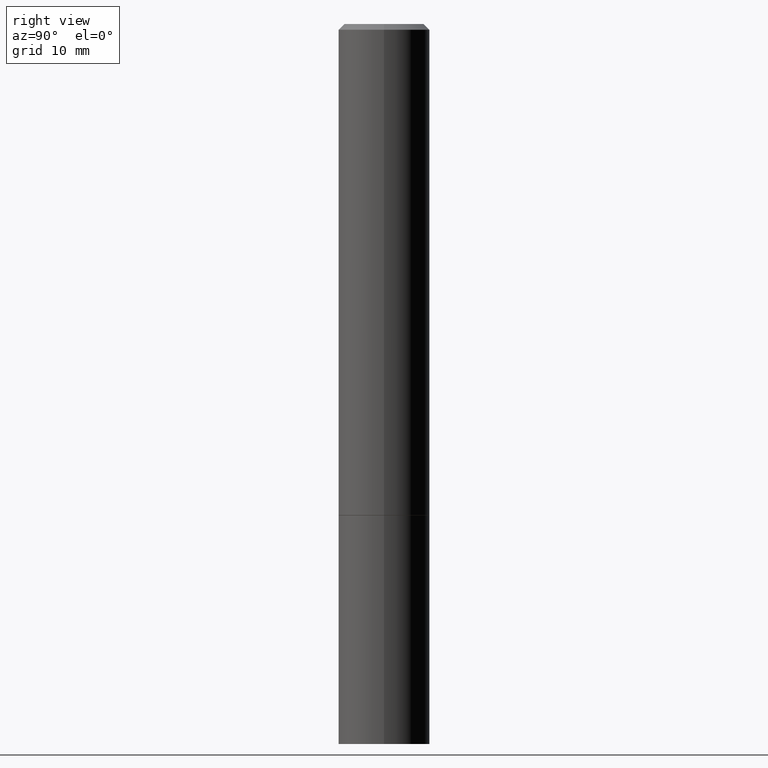
[diagram: clean part render]
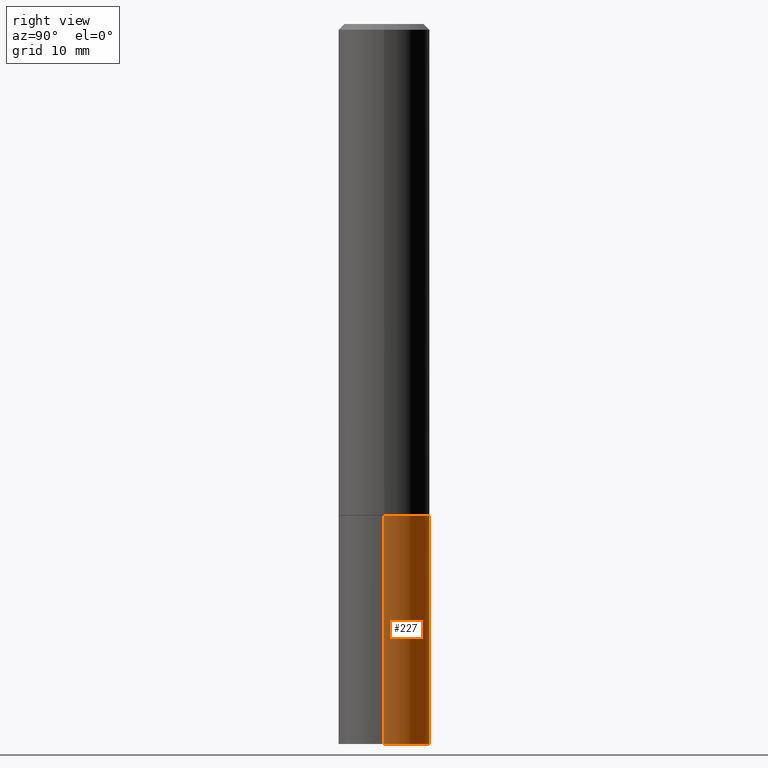
[diagram: same view with one face highlighted and labeled with its STEP entity id]
A machine part, right view. The second image highlights one B-rep face of the part: STEP entity #227.
In plain terms, the highlighted cylindrical surface (partial cylindrical patch) has radius 4.0005 mm, axis along (-0, 0, 1).
Its self-contained STEP definition (entity closure, byte-faithful):
#5 = CARTESIAN_POINT ( 'NONE',  ( 0.1575000000000000011, -1.099816621735586889E-15, 7.679978421878598033E-30 ) ) ;
#17 = CARTESIAN_POINT ( 'NONE',  ( 6.065496279980994755E-29, -8.659921164732655335E-15, -2.480300000000000171 ) ) ;
#18 = CARTESIAN_POINT ( 'NONE',  ( -0.1575000000000000011, -6.166220152807950602E-15, -2.480300000000000171 ) ) ;
#20 = DIRECTION ( 'NONE',  ( 1.000000000000000000, -6.982962677686268288E-15, 0.000000000000000000 ) ) ;
#25 = CIRCLE ( 'NONE', #197, 0.1575000000000000011 ) ;
#29 = ORIENTED_EDGE ( 'NONE', *, *, #336, .T. ) ;
#45 = EDGE_CURVE ( 'NONE', #259, #361, #107, .T. ) ;
#53 = EDGE_CURVE ( 'NONE', #259, #281, #25, .T. ) ;
#56 = CARTESIAN_POINT ( 'NONE',  ( 0.1575000000000000011, -7.010545380263150133E-15, -1.692900000000000293 ) ) ;
#84 = CYLINDRICAL_SURFACE ( 'NONE', #263, 0.1575000000000000011 ) ;
#107 = LINE ( 'NONE', #5, #150 ) ;
#112 = CARTESIAN_POINT ( 'NONE',  ( -0.1575000000000000011, 1.119104808822157801E-15, -7.747322767151475583E-30 ) ) ;
#122 = VERTEX_POINT ( 'NONE', #133 ) ;
#133 = CARTESIAN_POINT ( 'NONE',  ( -0.1575000000000000011, -6.166220152807950602E-15, -1.692900000000000293 ) ) ;
#146 = ORIENTED_EDGE ( 'NONE', *, *, #45, .F. ) ;
#150 = VECTOR ( 'NONE', #262, 39.37007874015748143 ) ;
#169 = CARTESIAN_POINT ( 'NONE',  ( 0.1575000000000000011, -9.759737786468242027E-15, -2.480300000000000171 ) ) ;
#197 = AXIS2_PLACEMENT_3D ( 'NONE', #17, #347, #237 ) ;
#205 = ORIENTED_EDGE ( 'NONE', *, *, #314, .F. ) ;
#219 = LINE ( 'NONE', #112, #251 ) ;
#227 = ADVANCED_FACE ( 'NONE', ( #300 ), #84, .T. ) ;
#232 = ORIENTED_EDGE ( 'NONE', *, *, #53, .T. ) ;
#237 = DIRECTION ( 'NONE',  ( 1.000000000000000000, -6.982962677686261977E-15, 0.000000000000000000 ) ) ;
#244 = CARTESIAN_POINT ( 'NONE',  ( 4.139934141990818918E-29, -5.910728758527562653E-15, -1.692900000000000293 ) ) ;
#246 = CIRCLE ( 'NONE', #304, 0.1575000000000000011 ) ;
#251 = VECTOR ( 'NONE', #326, 39.37007874015748143 ) ;
#259 = VERTEX_POINT ( 'NONE', #169 ) ;
#262 = DIRECTION ( 'NONE',  ( -2.445468806185136877E-29, 3.491481338843145188E-15, 1.000000000000000000 ) ) ;
#263 = AXIS2_PLACEMENT_3D ( 'NONE', #327, #302, #278 ) ;
#278 = DIRECTION ( 'NONE',  ( 1.000000000000000000, -6.982962677686265922E-15, 4.876176775795935232E-29 ) ) ;
#281 = VERTEX_POINT ( 'NONE', #18 ) ;
#300 = FACE_OUTER_BOUND ( 'NONE', #333, .T. ) ;
#302 = DIRECTION ( 'NONE',  ( -2.445468806185136597E-29, 3.491481338843145583E-15, 1.000000000000000000 ) ) ;
#304 = AXIS2_PLACEMENT_3D ( 'NONE', #244, #350, #20 ) ;
#314 = EDGE_CURVE ( 'NONE', #361, #122, #246, .T. ) ;
#326 = DIRECTION ( 'NONE',  ( -2.445468806185136877E-29, 3.491481338843145188E-15, 1.000000000000000000 ) ) ;
#327 = CARTESIAN_POINT ( 'NONE',  ( 0.000000000000000000, 0.000000000000000000, 0.000000000000000000 ) ) ;
#333 = EDGE_LOOP ( 'NONE', ( #232, #29, #205, #146 ) ) ;
#336 = EDGE_CURVE ( 'NONE', #281, #122, #219, .T. ) ;
#347 = DIRECTION ( 'NONE',  ( -2.445468806185136597E-29, 3.491481338843145583E-15, 1.000000000000000000 ) ) ;
#350 = DIRECTION ( 'NONE',  ( -2.445468806185136597E-29, 3.491481338843145583E-15, 1.000000000000000000 ) ) ;
#361 = VERTEX_POINT ( 'NONE', #56 ) ;